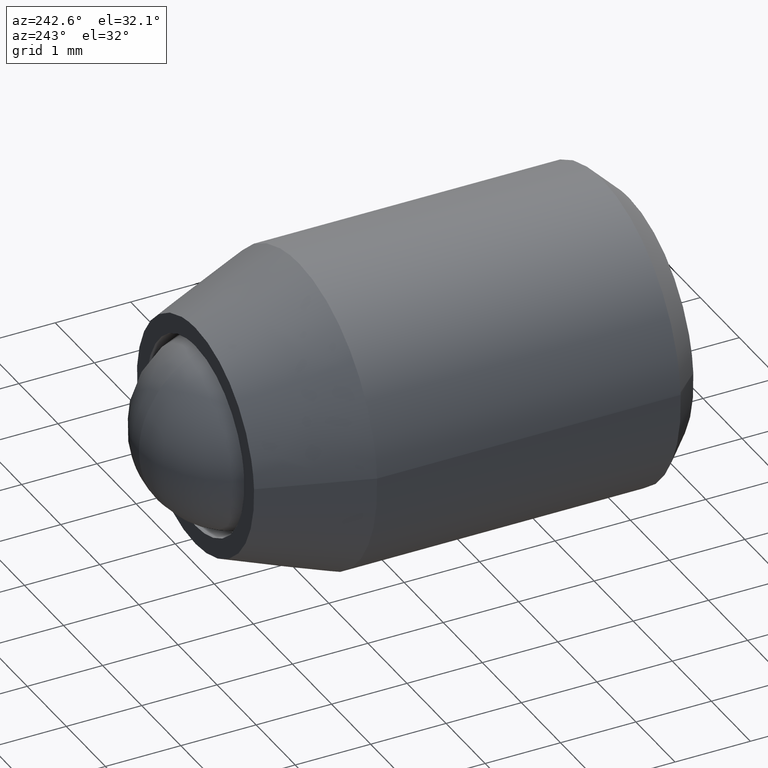
[diagram: clean part render]
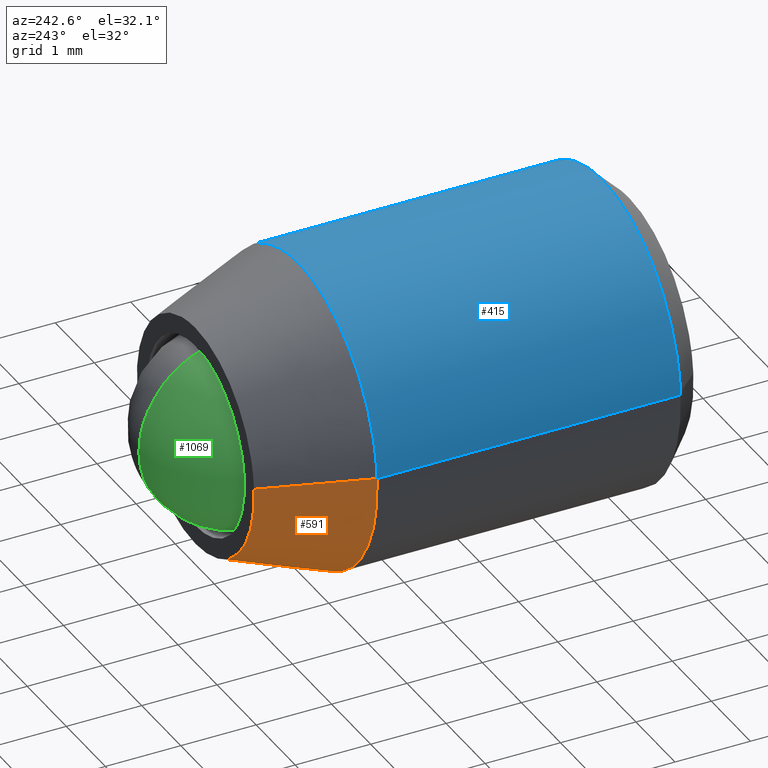
[diagram: same view with three faces highlighted in distinct colors, each labeled with its STEP entity id]
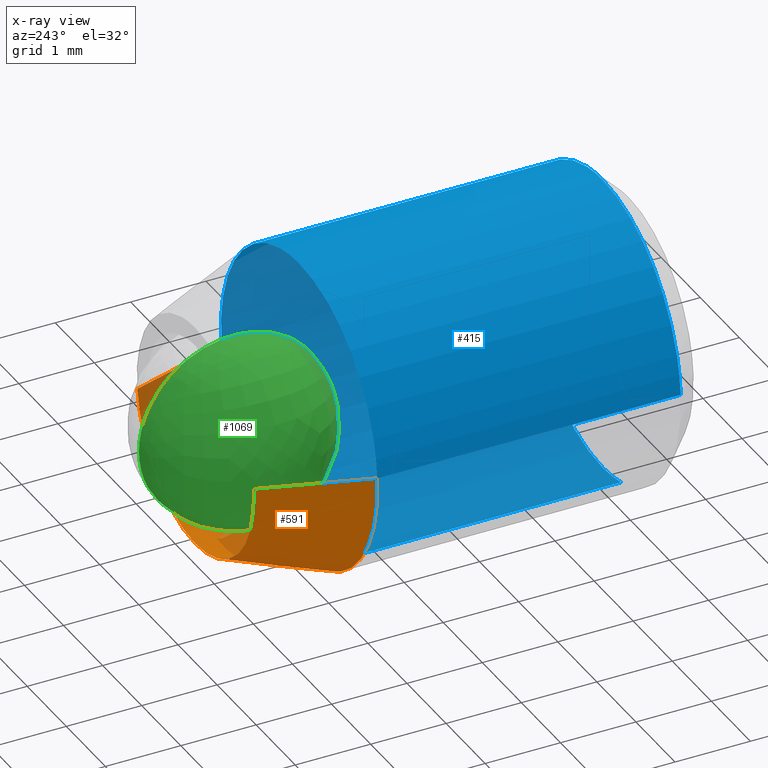
[diagram: x-ray of the same camera — body ghosted, the three highlighted faces saturated]
A machine part, auxiliary view with three faces highlighted in distinct colors.
The next image is the same camera in x-ray (body ghosted, the three faces saturated) — at least one of them is partly hidden behind the body in this view.
Their STEP definitions:

[orange] entity #591 — the highlighted face is a freeform B-spline surface patch.
#277=CARTESIAN_POINT('',(-0.468646455401585,-2.123739000000001,-1.944317489464851));
#278=VERTEX_POINT('',#277);
#284=CARTESIAN_POINT('',(0.0,-2.123739000000000,-2.0));
#285=VERTEX_POINT('',#284);
#286=CARTESIAN_POINT('',(-0.468646455401585,-2.123739000000001,-1.944317489464851));
#287=CARTESIAN_POINT('',(-0.237630800238393,-2.123739000000000,-2.000000000000000));
#288=CARTESIAN_POINT('',(0.0,-2.123739000000000,-2.0));
#296=(BOUNDED_CURVE()B_SPLINE_CURVE(2,(#286,#287,#288),.UNSPECIFIED.,.F.,.U.)B_SPLINE_CURVE_WITH_KNOTS((3,3),(0.959962839301035,1.0),.UNSPECIFIED.)CURVE()GEOMETRIC_REPRESENTATION_ITEM()RATIONAL_B_SPLINE_CURVE((0.921211106130680,0.953093548522915,1.0))REPRESENTATION_ITEM(''));
#297=EDGE_CURVE('',#278,#285,#296,.T.);
#299=CARTESIAN_POINT('',(1.986018947549469,-2.123738550367196,-0.236067967675831));
#300=VERTEX_POINT('',#299);
#301=CARTESIAN_POINT('',(0.0,-2.123739000000000,-2.0));
#302=CARTESIAN_POINT('',(1.776349920778663,-2.123739000000000,-2.000000000000000));
#303=CARTESIAN_POINT('',(1.986018947549469,-2.123738550367196,-0.236067967675831));
#311=(BOUNDED_CURVE()B_SPLINE_CURVE(2,(#301,#302,#303),.UNSPECIFIED.,.F.,.U.)B_SPLINE_CURVE_WITH_KNOTS((3,3),(0.0,0.229562555603303),.UNSPECIFIED.)CURVE()GEOMETRIC_REPRESENTATION_ITEM()RATIONAL_B_SPLINE_CURVE((1.0,0.731050736681225,0.956026915083120))REPRESENTATION_ITEM(''));
#312=EDGE_CURVE('',#285,#300,#311,.T.);
#331=CARTESIAN_POINT('',(-1.996269361620150,-2.123737383784706,0.122096106656471));
#332=VERTEX_POINT('',#331);
#446=CARTESIAN_POINT('',(-1.996269361620151,-2.123737383784706,0.122096106656471));
#447=CARTESIAN_POINT('',(-1.999999725827601,-2.123737413235773,0.061105033794331));
#448=CARTESIAN_POINT('',(-1.999999746213645,-2.123737444139167,-0.000000010332801));
#449=CARTESIAN_POINT('',(-2.000000271739791,-2.123738240789173,-1.575209903741137));
#450=CARTESIAN_POINT('',(-0.468646455401585,-2.123739000000000,-1.944317489464851));
#458=(BOUNDED_CURVE()B_SPLINE_CURVE(2,(#446,#447,#448,#449,#450),.UNSPECIFIED.,.F.,.U.)B_SPLINE_CURVE_WITH_KNOTS((3,2,3),(0.739333044740011,0.750000000000000,0.959962839301034),.UNSPECIFIED.)CURVE()GEOMETRIC_REPRESENTATION_ITEM()RATIONAL_B_SPLINE_CURVE((0.976072218482274,0.987502884555851,1.0,0.754013232663634,0.921211106130678))REPRESENTATION_ITEM(''));
#459=EDGE_CURVE('',#332,#278,#458,.T.);
#488=CARTESIAN_POINT('',(1.489514289545275,-0.750000000000838,-0.177051351989616));
#489=VERTEX_POINT('',#488);
#490=CARTESIAN_POINT('',(1.489514289545275,-0.750000000000838,-0.177051351989616));
#491=CARTESIAN_POINT('',(1.986018947549469,-2.123738550367196,-0.236067967675831));
#492=QUASI_UNIFORM_CURVE('',1,(#490,#491),.UNSPECIFIED.,.F.,.U.);
#493=EDGE_CURVE('',#489,#300,#492,.T.);
#512=CARTESIAN_POINT('',(-1.497202032713825,-0.749999434204483,0.091572132437434));
#513=VERTEX_POINT('',#512);
#527=CARTESIAN_POINT('',(-1.497202032713825,-0.749999434204483,0.091572132437434));
#528=CARTESIAN_POINT('',(-1.996269361620150,-2.123737383784706,0.122096106656471));
#529=QUASI_UNIFORM_CURVE('',1,(#527,#528),.UNSPECIFIED.,.F.,.U.);
#530=EDGE_CURVE('',#513,#332,#529,.T.);
#536=CARTESIAN_POINT('',(-1.484725512652527,-0.715656525000000,0.090809702558099));
#537=CARTESIAN_POINT('',(-1.575535215210627,-0.715656525000000,-1.393915810094427));
#538=CARTESIAN_POINT('',(-0.090809702558100,-0.715656525000000,-1.484725512652527));
#539=CARTESIAN_POINT('',(1.311295942623758,-0.715656525000000,-1.570481967639636));
#540=CARTESIAN_POINT('',(1.477101670465954,-0.715656525000000,-0.175575924051929));
#541=CARTESIAN_POINT('',(-2.009058198948512,-2.158941061875001,0.122879263482504));
#542=CARTESIAN_POINT('',(-2.131937462431017,-2.158941061875001,-1.886178935466008));
#543=CARTESIAN_POINT('',(-0.122879263482504,-2.158941061875001,-2.009058198948513));
#544=CARTESIAN_POINT('',(1.774381757655382,-2.158941061875001,-2.125099654110690));
#545=CARTESIAN_POINT('',(1.998741987283866,-2.158941061875002,-0.237580782945057));
#553=(BOUNDED_SURFACE()B_SPLINE_SURFACE(2,1,((#536,#541),(#537,#542),(#538,#543),(#539,#544),(#540,#545)),.UNSPECIFIED.,.F.,.F.,.U.)B_SPLINE_SURFACE_WITH_KNOTS((3,2,3),(2,2),(0.0,3.334936944056379,6.536476410350503),(0.0,1.0),.UNSPECIFIED.)GEOMETRIC_REPRESENTATION_ITEM()RATIONAL_B_SPLINE_SURFACE(((1.0,1.0),(0.707106781186548,0.707106781186548),(1.0,1.0),(0.718822509939086,0.718822509939086),(0.977505800795127,0.977505800795127)))REPRESENTATION_ITEM('')SURFACE());
#554=ORIENTED_EDGE('',*,*,#312,.F.);
#555=ORIENTED_EDGE('',*,*,#297,.F.);
#556=ORIENTED_EDGE('',*,*,#459,.F.);
#557=ORIENTED_EDGE('',*,*,#530,.F.);
#558=CARTESIAN_POINT('',(0.0,-0.750000000000000,-1.500000000000000));
#559=VERTEX_POINT('',#558);
#560=CARTESIAN_POINT('',(-1.497202032713825,-0.749999434204483,0.091572132437434));
#561=CARTESIAN_POINT('',(-1.500000000000000,-0.750000000000000,0.045828478792336));
#562=CARTESIAN_POINT('',(-1.500000000000000,-0.750000000000000,-4.439198E-016));
#563=CARTESIAN_POINT('',(-1.500000000000000,-0.750000000000000,-1.500000000000001));
#564=CARTESIAN_POINT('',(0.0,-0.750000000000000,-1.500000000000000));
#572=(BOUNDED_CURVE()B_SPLINE_CURVE(2,(#560,#561,#562,#563,#564),.UNSPECIFIED.,.F.,.U.)B_SPLINE_CURVE_WITH_KNOTS((3,2,3),(0.739333115356403,0.750000000000000,1.0),.UNSPECIFIED.)CURVE()GEOMETRIC_REPRESENTATION_ITEM()RATIONAL_B_SPLINE_CURVE((0.976072369826802,0.987502967288101,1.0,0.707106781186548,1.0))REPRESENTATION_ITEM(''));
#573=EDGE_CURVE('',#513,#559,#572,.T.);
#574=ORIENTED_EDGE('',*,*,#573,.T.);
#575=CARTESIAN_POINT('',(0.0,-0.750000000000000,-1.500000000000000));
#576=CARTESIAN_POINT('',(1.332261788919049,-0.750000000000000,-1.500000000000000));
#577=CARTESIAN_POINT('',(1.489514289545275,-0.750000000000838,-0.177051351989616));
#585=(BOUNDED_CURVE()B_SPLINE_CURVE(2,(#575,#576,#577),.UNSPECIFIED.,.F.,.U.)B_SPLINE_CURVE_WITH_KNOTS((3,3),(0.0,0.229562473514636),.UNSPECIFIED.)CURVE()GEOMETRIC_REPRESENTATION_ITEM()RATIONAL_B_SPLINE_CURVE((1.0,0.731050832854081,0.956026754185910))REPRESENTATION_ITEM(''));
#586=EDGE_CURVE('',#559,#489,#585,.T.);
#587=ORIENTED_EDGE('',*,*,#586,.T.);
#588=ORIENTED_EDGE('',*,*,#493,.T.);
#589=EDGE_LOOP('',(#554,#555,#556,#557,#574,#587,#588));
#590=FACE_OUTER_BOUND('',#589,.T.);
#591=ADVANCED_FACE('',(#590),#553,.T.);

[blue] entity #415 — the highlighted face is a freeform B-spline surface patch.
#234=CARTESIAN_POINT('',(-0.468647227970026,-2.023082475000000,-1.944317303249655));
#235=CARTESIAN_POINT('',(-0.297656594332521,-2.023082474999999,-1.985531916897912));
#236=CARTESIAN_POINT('',(-0.122097079069714,-2.023082474999999,-1.996269596843734));
#237=CARTESIAN_POINT('',(1.874172517774020,-2.023082475000000,-2.118366675913449));
#238=CARTESIAN_POINT('',(1.996269596843733,-2.023082474999999,-0.122097079069714));
#239=CARTESIAN_POINT('',(2.118366675913447,-2.023082475000000,1.874172517774019));
#240=CARTESIAN_POINT('',(0.122097079069714,-2.023082474999999,1.996269596843733));
#241=CARTESIAN_POINT('',(-1.874172517774020,-2.023082475000000,2.118366675913447));
#242=CARTESIAN_POINT('',(-1.996269596843733,-2.023082474999999,0.122097079069714));
#243=CARTESIAN_POINT('',(-0.468647227970026,-6.253172938125003,-1.944317303249655));
#244=CARTESIAN_POINT('',(-0.297656594332521,-6.253172938125002,-1.985531916897912));
#245=CARTESIAN_POINT('',(-0.122097079069714,-6.253172938125003,-1.996269596843734));
#246=CARTESIAN_POINT('',(1.874172517774020,-6.253172938125003,-2.118366675913449));
#247=CARTESIAN_POINT('',(1.996269596843733,-6.253172938125003,-0.122097079069714));
#248=CARTESIAN_POINT('',(2.118366675913447,-6.253172938125003,1.874172517774019));
#249=CARTESIAN_POINT('',(0.122097079069714,-6.253172938125003,1.996269596843733));
#250=CARTESIAN_POINT('',(-1.874172517774020,-6.253172938125003,2.118366675913447));
#251=CARTESIAN_POINT('',(-1.996269596843733,-6.253172938125003,0.122097079069714));
#259=(BOUNDED_SURFACE()B_SPLINE_SURFACE(2,1,((#234,#243),(#235,#244),(#236,#245),(#237,#246),(#238,#247),(#239,#248),(#240,#249),(#241,#250),(#242,#251)),.UNSPECIFIED.,.F.,.F.,.U.)B_SPLINE_SURFACE_WITH_KNOTS((3,2,2,2,3),(2,2),(0.0,0.397645019878171,3.711353518862931,7.025062017847690,10.338770516832451),(0.0,4.230090463125004),.UNSPECIFIED.)GEOMETRIC_REPRESENTATION_ITEM()RATIONAL_B_SPLINE_SURFACE(((0.938140952186599,0.938140952186599),(0.964852813742386,0.964852813742386),(1.0,1.0),(0.707106781186548,0.707106781186548),(1.0,1.0),(0.707106781186548,0.707106781186548),(1.0,1.0),(0.707106781186548,0.707106781186548),(1.0,1.0)))REPRESENTATION_ITEM('')SURFACE());
#260=CARTESIAN_POINT('',(-0.468646445757333,-6.150000000000000,-1.944317491789438));
#261=VERTEX_POINT('',#260);
#262=CARTESIAN_POINT('',(0.0,-6.150000000000000,-2.0));
#263=VERTEX_POINT('',#262);
#264=CARTESIAN_POINT('',(-0.468646445757333,-6.150000000000000,-1.944317491789438));
#265=CARTESIAN_POINT('',(-0.237630790177895,-6.150000000000000,-2.000000000000001));
#266=CARTESIAN_POINT('',(0.0,-6.150000000000000,-2.0));
#274=(BOUNDED_CURVE()B_SPLINE_CURVE(2,(#264,#265,#266),.UNSPECIFIED.,.F.,.U.)B_SPLINE_CURVE_WITH_KNOTS((3,3),(0.959962840916567,1.0),.UNSPECIFIED.)CURVE()GEOMETRIC_REPRESENTATION_ITEM()RATIONAL_B_SPLINE_CURVE((0.921211108703644,0.953093550415628,1.0))REPRESENTATION_ITEM(''));
#275=EDGE_CURVE('',#261,#263,#274,.T.);
#276=ORIENTED_EDGE('',*,*,#275,.F.);
#277=CARTESIAN_POINT('',(-0.468646455401585,-2.123739000000001,-1.944317489464851));
#278=VERTEX_POINT('',#277);
#279=CARTESIAN_POINT('',(-0.468646455401585,-2.123739000000001,-1.944317489464851));
#280=CARTESIAN_POINT('',(-0.468646445757333,-6.150000000000000,-1.944317491789438));
#281=QUASI_UNIFORM_CURVE('',1,(#279,#280),.UNSPECIFIED.,.F.,.U.);
#282=EDGE_CURVE('',#278,#261,#281,.T.);
#283=ORIENTED_EDGE('',*,*,#282,.F.);
#284=CARTESIAN_POINT('',(0.0,-2.123739000000000,-2.0));
#285=VERTEX_POINT('',#284);
#286=CARTESIAN_POINT('',(-0.468646455401585,-2.123739000000001,-1.944317489464851));
#287=CARTESIAN_POINT('',(-0.237630800238393,-2.123739000000000,-2.000000000000000));
#288=CARTESIAN_POINT('',(0.0,-2.123739000000000,-2.0));
#296=(BOUNDED_CURVE()B_SPLINE_CURVE(2,(#286,#287,#288),.UNSPECIFIED.,.F.,.U.)B_SPLINE_CURVE_WITH_KNOTS((3,3),(0.959962839301035,1.0),.UNSPECIFIED.)CURVE()GEOMETRIC_REPRESENTATION_ITEM()RATIONAL_B_SPLINE_CURVE((0.921211106130680,0.953093548522915,1.0))REPRESENTATION_ITEM(''));
#297=EDGE_CURVE('',#278,#285,#296,.T.);
#298=ORIENTED_EDGE('',*,*,#297,.T.);
#299=CARTESIAN_POINT('',(1.986018947549469,-2.123738550367196,-0.236067967675831));
#300=VERTEX_POINT('',#299);
#301=CARTESIAN_POINT('',(0.0,-2.123739000000000,-2.0));
#302=CARTESIAN_POINT('',(1.776349920778663,-2.123739000000000,-2.000000000000000));
#303=CARTESIAN_POINT('',(1.986018947549469,-2.123738550367196,-0.236067967675831));
#311=(BOUNDED_CURVE()B_SPLINE_CURVE(2,(#301,#302,#303),.UNSPECIFIED.,.F.,.U.)B_SPLINE_CURVE_WITH_KNOTS((3,3),(0.0,0.229562555603303),.UNSPECIFIED.)CURVE()GEOMETRIC_REPRESENTATION_ITEM()RATIONAL_B_SPLINE_CURVE((1.0,0.731050736681225,0.956026915083120))REPRESENTATION_ITEM(''));
#312=EDGE_CURVE('',#285,#300,#311,.T.);
#313=ORIENTED_EDGE('',*,*,#312,.T.);
#314=CARTESIAN_POINT('',(0.0,-2.123739000000000,2.0));
#315=VERTEX_POINT('',#314);
#316=CARTESIAN_POINT('',(1.986018947549469,-2.123738550367196,-0.236067967675831));
#317=CARTESIAN_POINT('',(2.000000000000000,-2.123739000000000,-0.118447751883767));
#318=CARTESIAN_POINT('',(2.0,-2.123739000000000,-4.439198E-016));
#319=CARTESIAN_POINT('',(2.000000000000000,-2.123739000000000,2.000000000000000));
#320=CARTESIAN_POINT('',(0.0,-2.123739000000000,2.0));
#328=(BOUNDED_CURVE()B_SPLINE_CURVE(2,(#316,#317,#318,#319,#320),.UNSPECIFIED.,.F.,.U.)B_SPLINE_CURVE_WITH_KNOTS((3,2,3),(0.229562555603303,0.250000000000000,0.500000000000000),.UNSPECIFIED.)CURVE()GEOMETRIC_REPRESENTATION_ITEM()RATIONAL_B_SPLINE_CURVE((0.956026915083120,0.976056044505322,1.0,0.707106781186548,1.0))REPRESENTATION_ITEM(''));
#329=EDGE_CURVE('',#300,#315,#328,.T.);
#330=ORIENTED_EDGE('',*,*,#329,.T.);
#331=CARTESIAN_POINT('',(-1.996269361620150,-2.123737383784706,0.122096106656471));
#332=VERTEX_POINT('',#331);
#333=CARTESIAN_POINT('',(0.0,-2.123739000000000,2.0));
#334=CARTESIAN_POINT('',(-1.881412888232733,-2.123738191892353,1.999999991021386));
#335=CARTESIAN_POINT('',(-1.996269361620151,-2.123737383784706,0.122096106656471));
#343=(BOUNDED_CURVE()B_SPLINE_CURVE(2,(#333,#334,#335),.UNSPECIFIED.,.F.,.U.)B_SPLINE_CURVE_WITH_KNOTS((3,3),(0.500000000000000,0.739333044740011),.UNSPECIFIED.)CURVE()GEOMETRIC_REPRESENTATION_ITEM()RATIONAL_B_SPLINE_CURVE((1.0,0.719603896630697,0.976072218482274))REPRESENTATION_ITEM(''));
#344=EDGE_CURVE('',#315,#332,#343,.T.);
#345=ORIENTED_EDGE('',*,*,#344,.T.);
#346=CARTESIAN_POINT('',(-1.996269606912893,-6.150000000000000,0.122096914440200));
#347=VERTEX_POINT('',#346);
#348=CARTESIAN_POINT('',(-1.996269361620150,-2.123737383784706,0.122096106656471));
#349=CARTESIAN_POINT('',(-1.996269606912893,-6.150000000000000,0.122096914440200));
#350=QUASI_UNIFORM_CURVE('',1,(#348,#349),.UNSPECIFIED.,.F.,.U.);
#351=EDGE_CURVE('',#332,#347,#350,.T.);
#352=ORIENTED_EDGE('',*,*,#351,.T.);
#353=CARTESIAN_POINT('',(-1.993834667755136,-6.149999999649104,0.156918192257462));
#354=VERTEX_POINT('',#353);
#355=CARTESIAN_POINT('',(-1.993834667755136,-6.149999999649105,0.156918192257462));
#356=CARTESIAN_POINT('',(-1.995204084671445,-6.150000000000000,0.139518096250091));
#357=CARTESIAN_POINT('',(-1.996269606912892,-6.150000000000000,0.122096914440200));
#365=(BOUNDED_CURVE()B_SPLINE_CURVE(2,(#355,#356,#357),.UNSPECIFIED.,.F.,.U.)B_SPLINE_CURVE_WITH_KNOTS((3,3),(0.736331300499633,0.739332990701346),.UNSPECIFIED.)CURVE()GEOMETRIC_REPRESENTATION_ITEM()RATIONAL_B_SPLINE_CURVE((0.969723355893974,0.972855505118960,0.976072102667074))REPRESENTATION_ITEM(''));
#366=EDGE_CURVE('',#354,#347,#365,.T.);
#367=ORIENTED_EDGE('',*,*,#366,.F.);
#368=CARTESIAN_POINT('',(0.0,-6.150000000000000,2.0));
#369=VERTEX_POINT('',#368);
#370=CARTESIAN_POINT('',(0.0,-6.150000000000000,2.0));
#371=CARTESIAN_POINT('',(-1.848780981876145,-6.150000000000001,2.000000000000000));
#372=CARTESIAN_POINT('',(-1.993834667755136,-6.149999999649105,0.156918192257462));
#380=(BOUNDED_CURVE()B_SPLINE_CURVE(2,(#370,#371,#372),.UNSPECIFIED.,.F.,.U.)B_SPLINE_CURVE_WITH_KNOTS((3,3),(0.500000000000000,0.736331300499633),.UNSPECIFIED.)CURVE()GEOMETRIC_REPRESENTATION_ITEM()RATIONAL_B_SPLINE_CURVE((1.0,0.723120658761173,0.969723355893974))REPRESENTATION_ITEM(''));
#381=EDGE_CURVE('',#369,#354,#380,.T.);
#382=ORIENTED_EDGE('',*,*,#381,.F.);
#383=CARTESIAN_POINT('',(1.993834667755136,-6.149999999649104,-0.156918192257463));
#384=VERTEX_POINT('',#383);
#385=CARTESIAN_POINT('',(1.993834667755136,-6.149999999649105,-0.156918192257463));
#386=CARTESIAN_POINT('',(2.000000000000000,-6.150000000000000,-0.078580214793174));
#387=CARTESIAN_POINT('',(2.0,-6.150000000000000,-4.439198E-016));
#388=CARTESIAN_POINT('',(2.000000000000000,-6.150000000000002,2.000000000000000));
#389=CARTESIAN_POINT('',(0.0,-6.150000000000000,2.0));
#397=(BOUNDED_CURVE()B_SPLINE_CURVE(2,(#385,#386,#387,#388,#389),.UNSPECIFIED.,.F.,.U.)B_SPLINE_CURVE_WITH_KNOTS((3,2,3),(0.236331300499633,0.250000000000000,0.500000000000000),.UNSPECIFIED.)CURVE()GEOMETRIC_REPRESENTATION_ITEM()RATIONAL_B_SPLINE_CURVE((0.969723355893974,0.983986122425374,1.0,0.707106781186548,1.0))REPRESENTATION_ITEM(''));
#398=EDGE_CURVE('',#384,#369,#397,.T.);
#399=ORIENTED_EDGE('',*,*,#398,.F.);
#400=CARTESIAN_POINT('',(0.0,-6.150000000000000,-2.0));
#401=CARTESIAN_POINT('',(1.848780981876145,-6.150000000000001,-2.000000000000000));
#402=CARTESIAN_POINT('',(1.993834667755136,-6.149999999649105,-0.156918192257463));
#410=(BOUNDED_CURVE()B_SPLINE_CURVE(2,(#400,#401,#402),.UNSPECIFIED.,.F.,.U.)B_SPLINE_CURVE_WITH_KNOTS((3,3),(0.0,0.236331300499633),.UNSPECIFIED.)CURVE()GEOMETRIC_REPRESENTATION_ITEM()RATIONAL_B_SPLINE_CURVE((1.0,0.723120658761173,0.969723355893974))REPRESENTATION_ITEM(''));
#411=EDGE_CURVE('',#263,#384,#410,.T.);
#412=ORIENTED_EDGE('',*,*,#411,.F.);
#413=EDGE_LOOP('',(#276,#283,#298,#313,#330,#345,#352,#367,#382,#399,#412));
#414=FACE_OUTER_BOUND('',#413,.T.);
#415=ADVANCED_FACE('',(#414),#259,.T.);

[green] entity #1069 — the highlighted face is a freeform B-spline surface patch.
#989=CARTESIAN_POINT('',(0.468750000000000,-2.069381912632931,0.819381912632931));
#990=CARTESIAN_POINT('',(0.306603773584906,-1.992081732195862,0.989442309594483));
#991=CARTESIAN_POINT('',(0.059523809523810,-1.562145490526831,1.248581962107323));
#992=CARTESIAN_POINT('',(0.059523809523810,-0.937854509473169,1.248581962107323));
#993=CARTESIAN_POINT('',(0.306603773584906,-0.507918267804139,0.989442309594483));
#994=CARTESIAN_POINT('',(0.468750000000000,-0.430618087367069,0.819381912632931));
#995=CARTESIAN_POINT('',(0.306603773584906,-2.239442309594482,0.742081732195862));
#996=CARTESIAN_POINT('',(0.059523809523810,-2.186436471580492,0.936436471580492));
#997=CARTESIAN_POINT('',(-0.362903225806452,-1.672906793616997,1.268720380850990));
#998=CARTESIAN_POINT('',(-0.362903225806452,-0.827093206383003,1.268720380850990));
#999=CARTESIAN_POINT('',(0.059523809523810,-0.313563528419508,0.936436471580492));
#1000=CARTESIAN_POINT('',(0.306603773584906,-0.260557690405518,0.742081732195862));
#1001=CARTESIAN_POINT('',(0.059523809523810,-2.498581962107323,0.312145490526831));
#1002=CARTESIAN_POINT('',(-0.362903225806452,-2.518720380850990,0.422906793616997));
#1003=CARTESIAN_POINT('',(-1.250000000000000,-1.905505530106345,0.655505530106345));
#1004=CARTESIAN_POINT('',(-1.250000000000000,-0.594494469893655,0.655505530106345));
#1005=CARTESIAN_POINT('',(-0.362903225806452,0.018720380850989,0.422906793616997));
#1006=CARTESIAN_POINT('',(0.059523809523810,-0.001418037892677,0.312145490526831));
#1007=CARTESIAN_POINT('',(0.059523809523810,-2.498581962107323,-0.312145490526830));
#1008=CARTESIAN_POINT('',(-0.362903225806452,-2.518720380850990,-0.422906793616996));
#1009=CARTESIAN_POINT('',(-1.250000000000000,-1.905505530106345,-0.655505530106344));
#1010=CARTESIAN_POINT('',(-1.250000000000000,-0.594494469893655,-0.655505530106344));
#1011=CARTESIAN_POINT('',(-0.362903225806452,0.018720380850989,-0.422906793616996));
#1012=CARTESIAN_POINT('',(0.059523809523810,-0.001418037892677,-0.312145490526830));
#1013=CARTESIAN_POINT('',(0.306603773584906,-2.239442309594482,-0.742081732195861));
#1014=CARTESIAN_POINT('',(0.059523809523810,-2.186436471580492,-0.936436471580492));
#1015=CARTESIAN_POINT('',(-0.362903225806452,-1.672906793616997,-1.268720380850989));
#1016=CARTESIAN_POINT('',(-0.362903225806452,-0.827093206383003,-1.268720380850989));
#1017=CARTESIAN_POINT('',(0.059523809523810,-0.313563528419508,-0.936436471580492));
#1018=CARTESIAN_POINT('',(0.306603773584906,-0.260557690405518,-0.742081732195861));
#1019=CARTESIAN_POINT('',(0.468750000000000,-2.069381912632931,-0.819381912632930));
#1020=CARTESIAN_POINT('',(0.306603773584906,-1.992081732195862,-0.989442309594482));
#1021=CARTESIAN_POINT('',(0.059523809523810,-1.562145490526831,-1.248581962107322));
#1022=CARTESIAN_POINT('',(0.059523809523810,-0.937854509473169,-1.248581962107322));
#1023=CARTESIAN_POINT('',(0.306603773584906,-0.507918267804139,-0.989442309594482));
#1024=CARTESIAN_POINT('',(0.468750000000000,-0.430618087367069,-0.819381912632930));
#1032=(BOUNDED_SURFACE()B_SPLINE_SURFACE(2,2,((#989,#995,#1001,#1007,#1013,#1019),(#990,#996,#1002,#1008,#1014,#1020),(#991,#997,#1003,#1009,#1015,#1021),(#992,#998,#1004,#1010,#1016,#1022),(#993,#999,#1005,#1011,#1017,#1023),(#994,#1000,#1006,#1012,#1018,#1024)),.UNSPECIFIED.,.F.,.F.,.U.)GEOMETRIC_REPRESENTATION_ITEM()QUASI_UNIFORM_SURFACE()RATIONAL_B_SPLINE_SURFACE(((3.200000000000000,2.650000000000000,2.100000000000000,2.100000000000000,2.650000000000000,3.200000000000000),(2.650000000000000,2.100000000000000,1.550000000000000,1.550000000000000,2.100000000000000,2.650000000000000),(2.100000000000000,1.550000000000000,1.0,1.0,1.550000000000000,2.100000000000000),(2.100000000000000,1.550000000000000,1.0,1.0,1.550000000000000,2.100000000000000),(2.650000000000000,2.100000000000000,1.550000000000000,1.550000000000000,2.100000000000000,2.650000000000000),(3.200000000000000,2.650000000000000,2.100000000000000,2.100000000000000,2.650000000000000,3.200000000000000)))REPRESENTATION_ITEM('')SURFACE());
#1033=CARTESIAN_POINT('',(0.0,0.0,3.673819E-016));
#1034=VERTEX_POINT('',#1033);
#1035=CARTESIAN_POINT('',(0.0,-2.500000000000000,3.673819E-016));
#1036=VERTEX_POINT('',#1035);
#1037=CARTESIAN_POINT('',(0.0,0.0,3.673819E-016));
#1038=CARTESIAN_POINT('',(0.0,0.0,-1.250000000000000));
#1039=CARTESIAN_POINT('',(0.0,-1.250000000000000,-1.250000000000000));
#1040=CARTESIAN_POINT('',(0.0,-2.500000000000000,-1.250000000000000));
#1041=CARTESIAN_POINT('',(0.0,-2.500000000000000,3.673819E-016));
#1049=(BOUNDED_CURVE()B_SPLINE_CURVE(2,(#1037,#1038,#1039,#1040,#1041),.UNSPECIFIED.,.F.,.U.)B_SPLINE_CURVE_WITH_KNOTS((3,2,3),(0.0,0.500000000000000,1.0),.UNSPECIFIED.)CURVE()GEOMETRIC_REPRESENTATION_ITEM()RATIONAL_B_SPLINE_CURVE((1.0,0.707106781186548,1.0,0.707106781186548,1.0))REPRESENTATION_ITEM(''));
#1050=EDGE_CURVE('',#1034,#1036,#1049,.T.);
#1051=ORIENTED_EDGE('',*,*,#1050,.T.);
#1052=CARTESIAN_POINT('',(0.0,0.0,3.673819E-016));
#1053=CARTESIAN_POINT('',(0.0,0.0,1.250000000000000));
#1054=CARTESIAN_POINT('',(0.0,-1.250000000000000,1.250000000000000));
#1055=CARTESIAN_POINT('',(0.0,-2.500000000000000,1.250000000000000));
#1056=CARTESIAN_POINT('',(0.0,-2.500000000000000,3.673819E-016));
#1064=(BOUNDED_CURVE()B_SPLINE_CURVE(2,(#1052,#1053,#1054,#1055,#1056),.UNSPECIFIED.,.F.,.U.)B_SPLINE_CURVE_WITH_KNOTS((3,2,3),(0.0,0.500000000000000,1.0),.UNSPECIFIED.)CURVE()GEOMETRIC_REPRESENTATION_ITEM()RATIONAL_B_SPLINE_CURVE((1.0,0.707106781186548,1.0,0.707106781186548,1.0))REPRESENTATION_ITEM(''));
#1065=EDGE_CURVE('',#1034,#1036,#1064,.T.);
#1066=ORIENTED_EDGE('',*,*,#1065,.F.);
#1067=EDGE_LOOP('',(#1051,#1066));
#1068=FACE_OUTER_BOUND('',#1067,.T.);
#1069=ADVANCED_FACE('',(#1068),#1032,.T.);